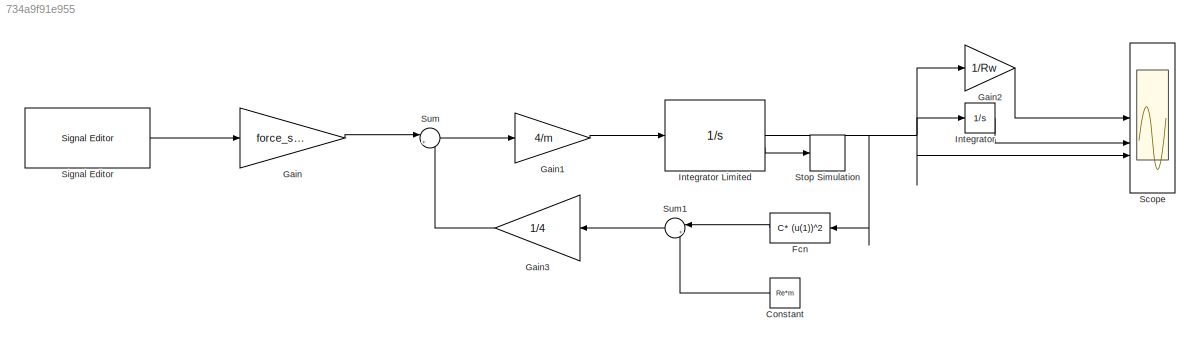
MODEL slx_734a9f91e955
KIND model
CONFIG AbsTol = auto
CONFIG EnableMultiTasking = off
CONFIG FixedStep = auto
CONFIG MaxStep = auto
CONFIG MinStep = auto
CONFIG RelTol = 1e-3
CONFIG SampleTimeConstraint = Unconstrained
CONFIG SolverName = VariableStepAuto
CONFIG StartTime = 0.0
CONFIG StopTime = 40
BLOCK [Constant] Constant
  Value = Re*m
BLOCK [Fcn] Fcn
  Expr = C* (u(1))^2
BLOCK [Gain] Gain
  Gain = force_scaling
BLOCK [Gain] Gain1
  Gain = 4/m
BLOCK [Gain] Gain2
  Gain = 1/Rw
BLOCK [Gain] Gain3
  Gain = 1/4
BLOCK [Integrator] Integrator
BLOCK [Integrator] Integrator Limited
  InitialCondition = 10
  LimitOutput = on
  LowerSaturationLimit = 0
  ShowSaturationPort = on
  UpperSaturationLimit = Inf
BLOCK [Scope] Scope
  Floating = off
  NumInputPorts = 3
  ScopeSpecificationString = Simulink.scopes.TimeScopeBlockCfg('CurrentConfiguration', extmgr.ConfigurationSet(extmgr.Configuration('Core','General UI',true),extmgr.Configuration('Core','Source UI',true),extmgr.Configuration('Sources','WiredSimulink',true),extmgr.Configuration('Visuals','Time Domain',true,'SerializedDisplays',{struct('MinYLimReal','-20.29022','MaxYLimReal','182.61196','YLabelReal','','MinYLimMag','0.00000','M...<+2929ch>
BLOCK [Reference] Signal Editor  REF=SignalEditorBlockLib/Signal Editor
  LibrarySourceBlock = simulink/Sources/Signal Editor
  SourceBlock = SignalEditorBlockLib/Signal Editor
  SourceType = SignalEditor
  UserDataPersistent = on
BLOCK [Stop] Stop Simulation
BLOCK [Sum] Sum
  Inputs = |+-
BLOCK [Sum] Sum1
  Inputs = |++
LINE Constant:1 -> Sum1:2
LINE Fcn:1 -> Sum1:1
LINE Gain1:1 -> Integrator Limited:1
LINE Gain2:1 -> Scope:1
LINE Gain3:1 -> Sum:2
LINE Gain:1 -> Sum:1
NET Integrator Limited:1 -> Fcn:1, Gain2:1, Integrator:1, Scope:3
LINE Integrator Limited:2 -> Stop Simulation:1
LINE Integrator:1 -> Scope:2
LINE Signal Editor:1 -> Gain:1
LINE Sum1:1 -> Gain3:1
LINE Sum:1 -> Gain1:1
note: NET lines group one-source signal fan-out (src -> all destinations, sorted); 1:1 wires keep LINE
